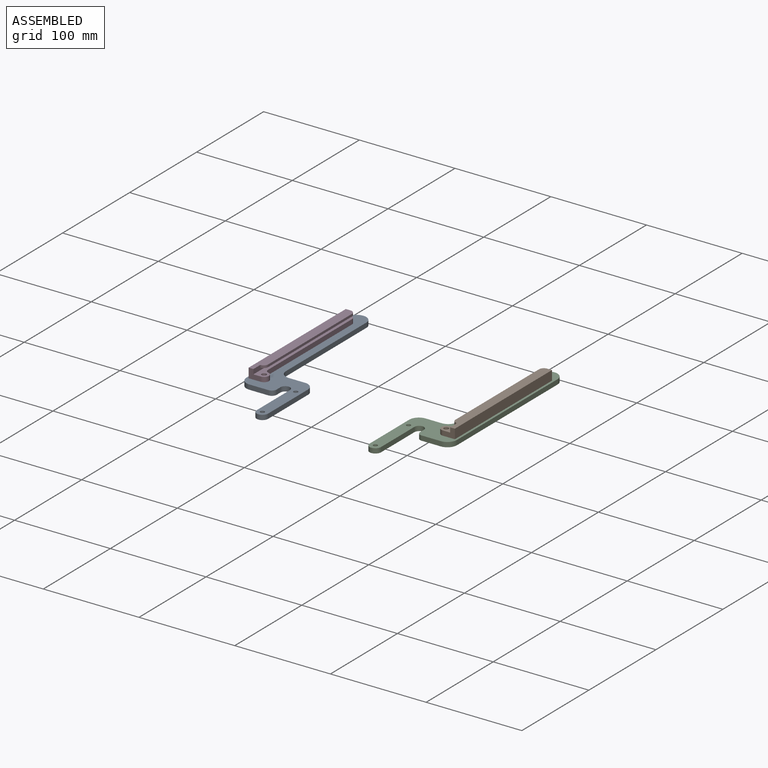
[diagram: assembled view]
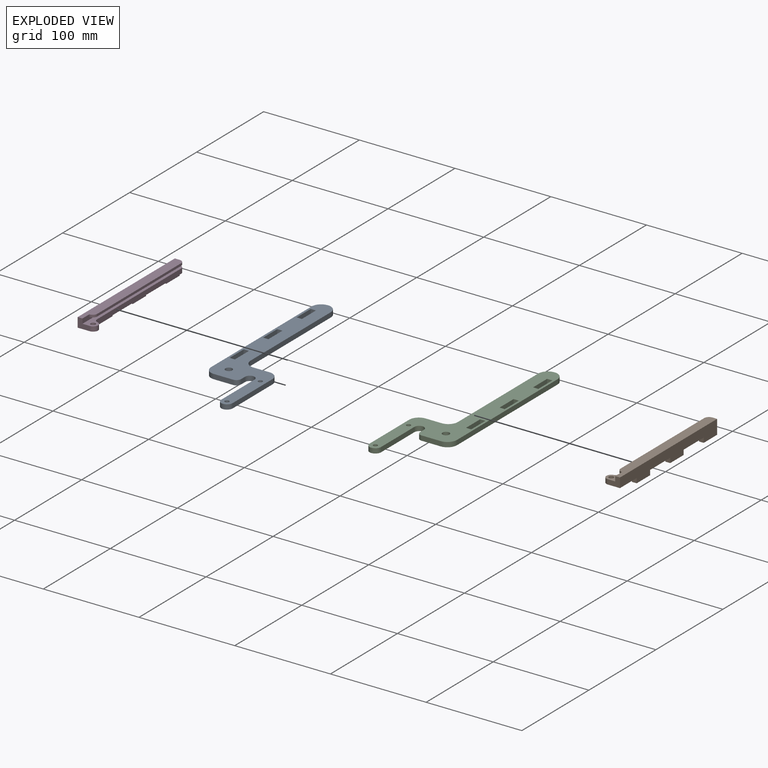
[diagram: exploded view]
GUIDED TOUR — MATED ASSEMBLY (Onshape document 1dc58d73f94488527673a821, AutoMate assembly 1dc58d73f94488527673a821_1d1bc981f87a5ec84d9c5de7_67ff52ae4060aa05bb21cb07_default)

This assembly has 4 components, labeled P0..P3 below (a component is one placed occurrence of a part; the same part can appear more than once), held together by 2 mates. A mate is a constraint between two components; its type names the relative motion it leaves free:
  PLANAR — leaves sliding in the plane through the listed point (normal = the listed direction) and rotation about that normal free.
Axis/direction vectors are unit vectors and 'through' points are millimeter coordinates, both in the assembly's world frame.

MATES
  1. PLANAR "Planar 4": P3 <-> P0, direction (-1.000, 0.000, 0.000) through (-289.00, 18.47, 2.50) mm
  2. PLANAR "Planar 3": P1 <-> P2, direction (1.000, 0.000, 0.000) through (-73.50, 18.47, 2.50) mm

ASSEMBLY ORDER
  1. P2 — the base component [order verified]
  2. P1 [order verified]
  3. P0 [order verified]
  4. P3 [order verified]
(P1 verified with a relaxed clearance tolerance: the source model stores slight part interference there.)
Order-tag legend:
  [order verified] — this step's position reverses a verified removal order: the component was checked to insert without passing through the ones already placed.

Of the 4 components, 2 carry the full construction recipe — the FeatureScript program that regenerates the part's solid from scratch; the rest are supplied as boundary geometry only.
Each toured component is shown spotlighted twice — in the assembled view, then in the exploded view, where a leader line traces a displaced component back to its assembled socket (saturated green if recipe-attached, orange if geometry-only; every other component desaturated gray) — followed by its recipe or geometry summary and the mates that hold it.
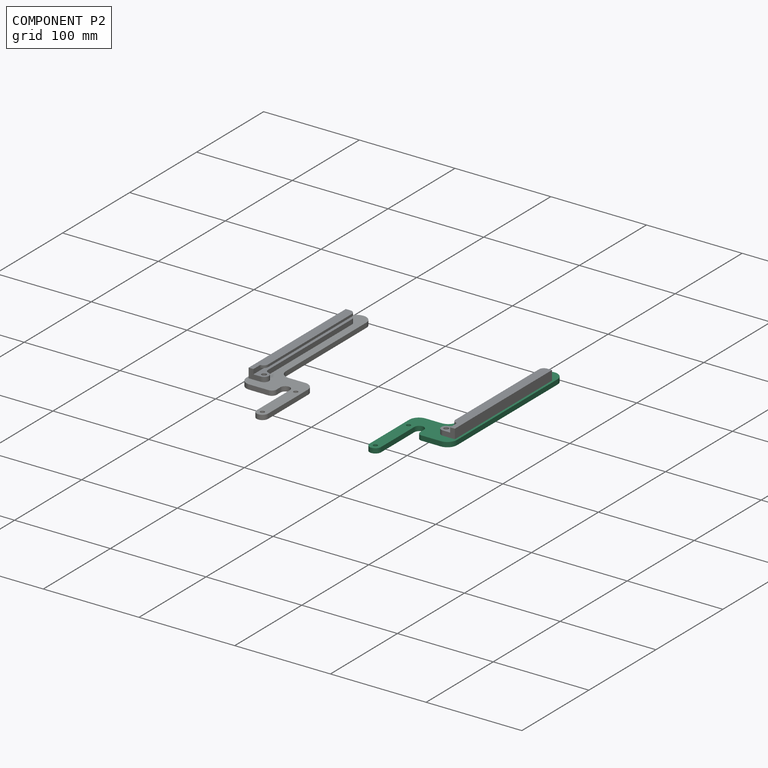
[diagram: component P2 — assembled]
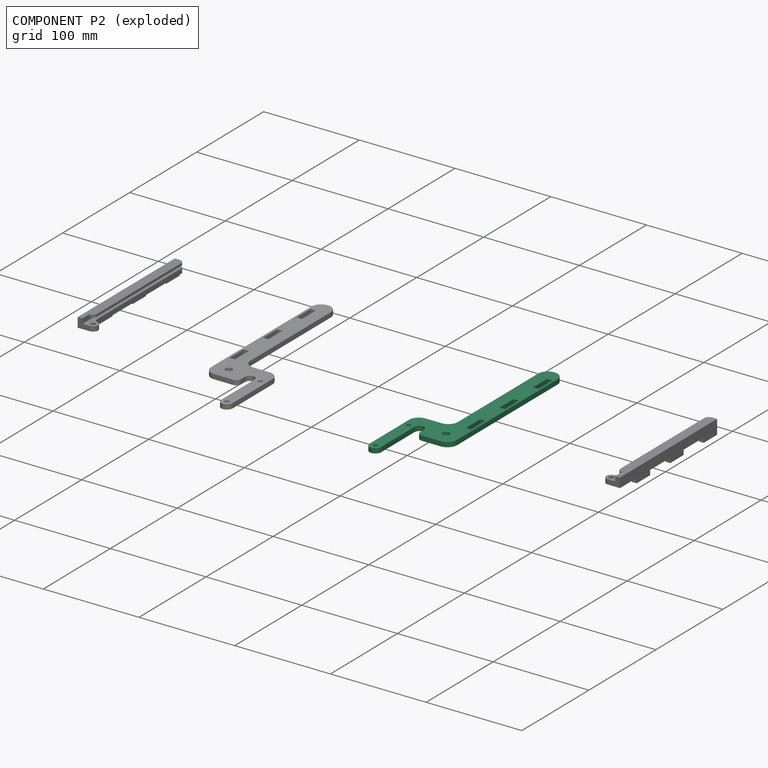
[diagram: component P2 — exploded]
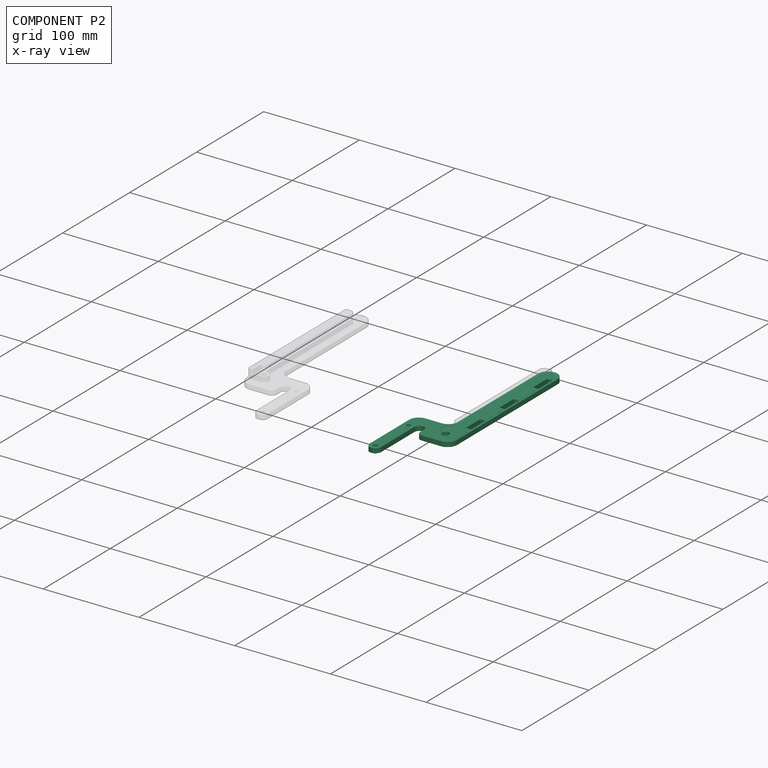
[diagram: component P2 — x-ray view]
COMPONENT P2 — same part as P0 (CADFS 00196393); its construction recipe is shown at P0.
Held by: PLANAR mate "Planar 3" to P1.
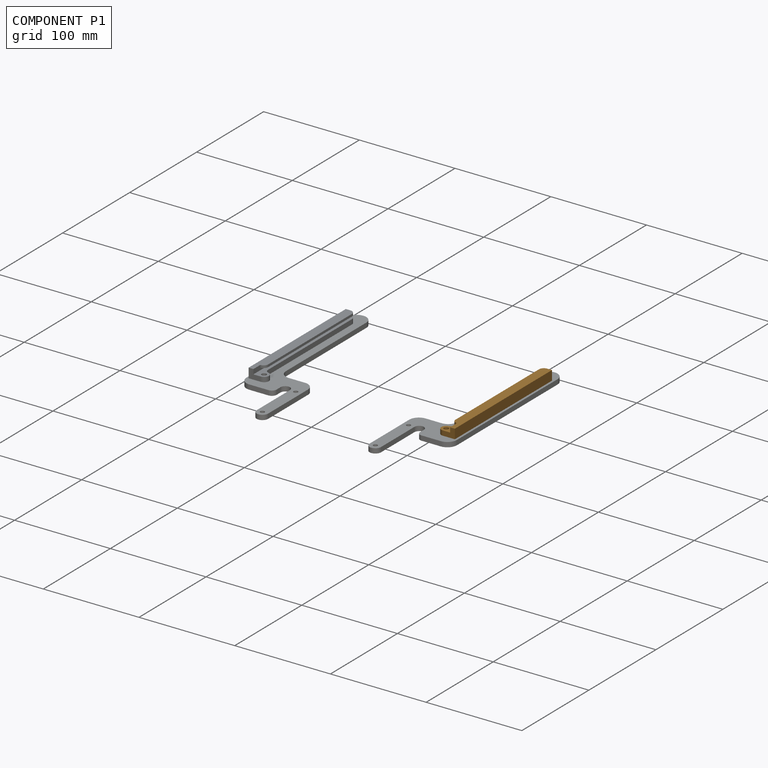
[diagram: component P1 — assembled]
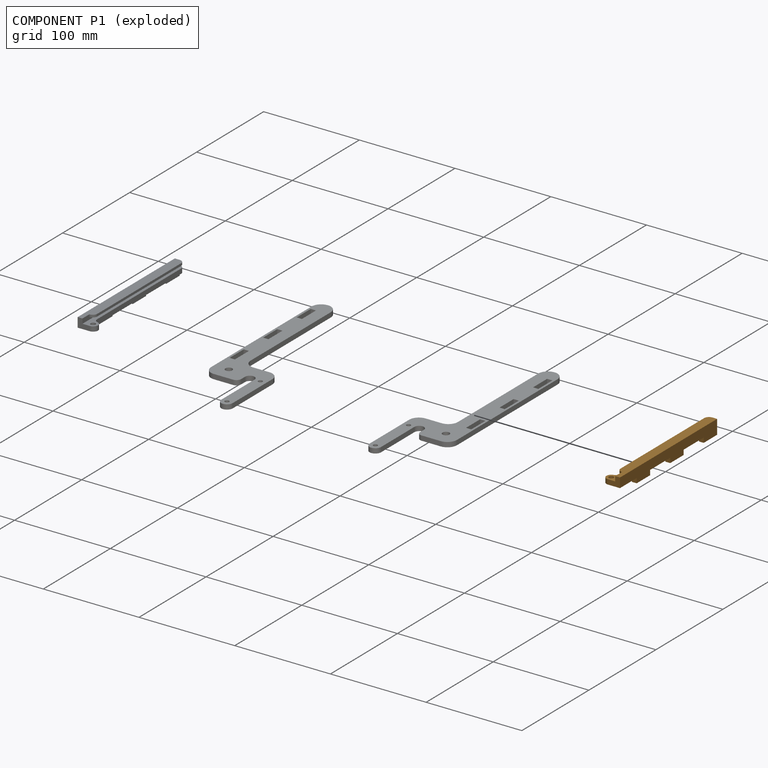
[diagram: component P1 — exploded]
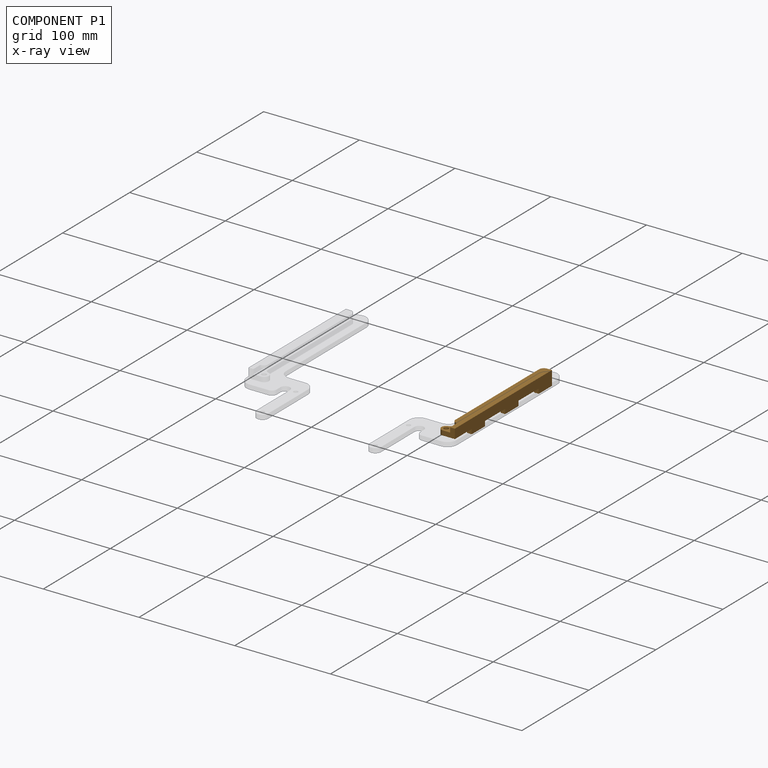
[diagram: component P1 — x-ray view]
COMPONENT P1 — geometry summary (no construction recipe available for this part):
  bounding box: 145.0 x 17.7 x 15.0 mm
  B-rep topology: 1 solid, 27 faces, 144 edges
  volume: 14264 mm^3 (37% of its bounding box)
Held by: PLANAR mate "Planar 3" to P2.
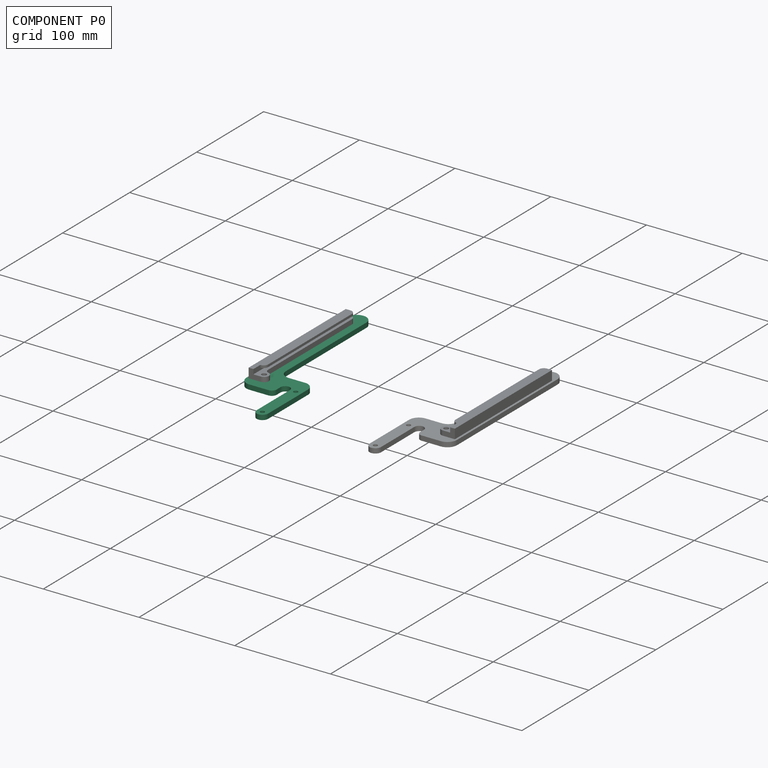
[diagram: component P0 — assembled]
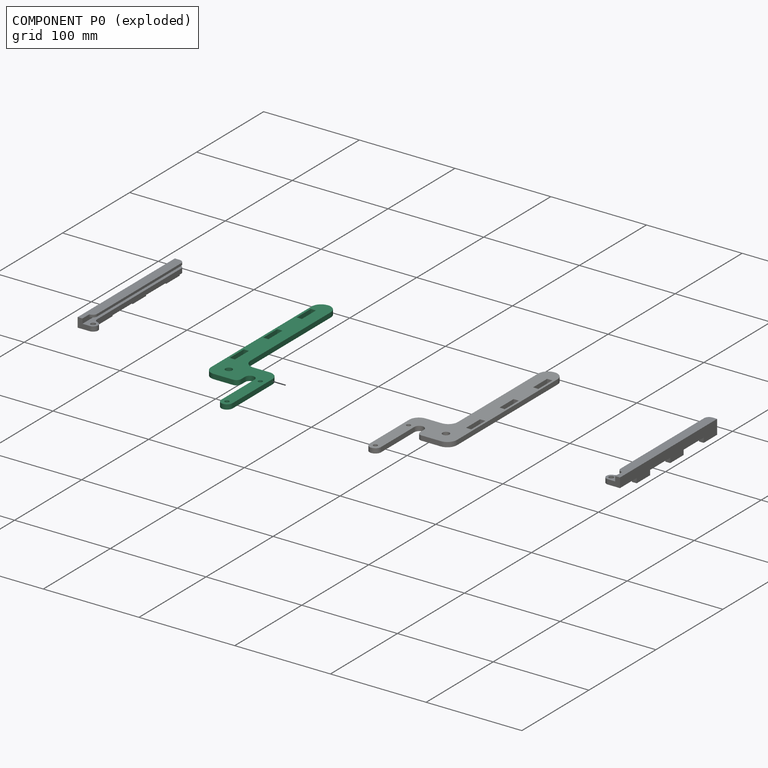
[diagram: component P0 — exploded]
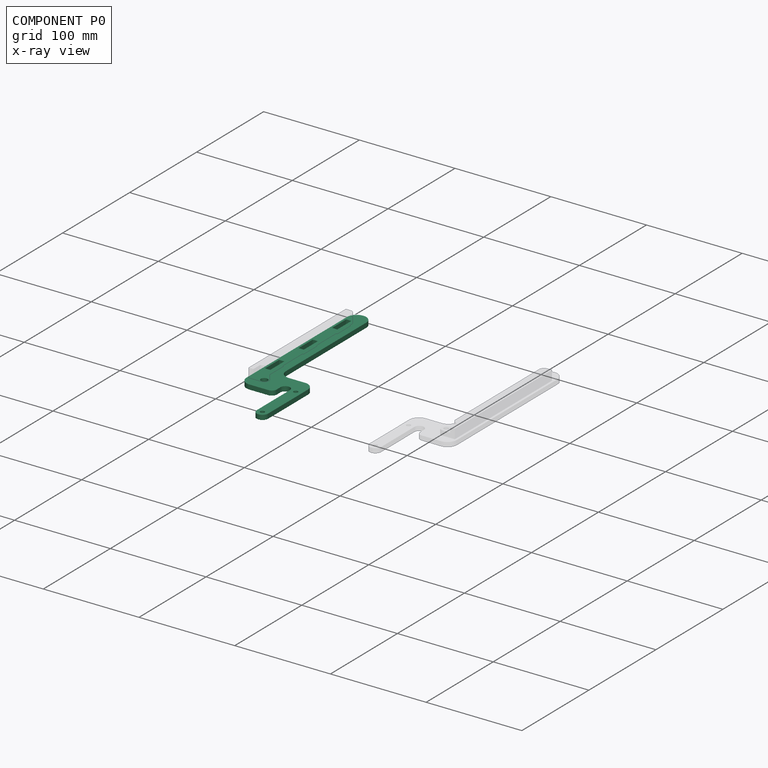
[diagram: component P0 — x-ray view]
COMPONENT P0 — recipe-attached (CADFS 00196393, mesh-verified: the recipe's output STEP matches this component's geometry to below the mesh-comparison resolution (tessellation chordal tolerance ~0.334 mm)).
Held by: PLANAR mate "Planar 4" to P3.
Construction recipe (FeatureScript — the CAD program that rebuilds this solid; sketch coordinates are in the units given by the * unit suffixes, e.g. mm):

FeatureScript 1511;
import(path : "onshape/std/geometry.fs", version : "1511.0");
import(path : "onshape/std/common.fs", version : "1511.0");
const mm = millimeter;
const VERTEX = EntityType.VERTEX;
const EDGE = EntityType.EDGE;
const FACE = EntityType.FACE;
const BODY = EntityType.BODY;
function v(x, y){return vector(x, y);}
function OD(order){return orderDisambiguation(order);}
function OSD(set){return originalSetDisambiguation(set);}
function TD(topology){return topologyDisambiguation(topology);}
function TDD(query){return trueDependencyDisambiguation(query);}
function sQuery(a, b, c) {return sketchEntityQuery(a, b, c);}

annotation { "Feature Type Name" : "Feature", "Feature Type Description" : "" }
export const myFeature = defineFeature(function(context is Context, id is Id, definition is map)
    precondition{}
    {
        {
            var Q0;
            Q0=qCreatedBy(makeId("Top.planeOp"),FACE);
            var sketch = newSketch(context, id + "F0", { "sketchPlane" : qUnion([Q0])});
            skLineSegment(sketch, "E0.bottom", {"start": v(0.08, 85) * mm, "end": v(-0.08, 85) * mm});
            skLineSegment(sketch, "E0.top", {"start": v(10.08, -85) * mm, "end": v(-0.08, -85) * mm});
            skLineSegment(sketch, "E0.left", {"start": v(10.08, 75) * mm, "end": v(10.08, -44.84) * mm});
            skLineSegment(sketch, "E0.right", {"start": v(-10.08, 75) * mm, "end": v(-10.08, -75) * mm});
            skPoint(sketch, "E0.middle", {"position": v(0, 0) * mm});
            skLineSegment(sketch, "E1.bottom", {"start": v(-2.33, 49.5) * mm, "end": v(-7.83, 49.5) * mm});
            skLineSegment(sketch, "E1.top", {"start": v(-2.33, 70.5) * mm, "end": v(-7.83, 70.5) * mm});
            skLineSegment(sketch, "E1.left", {"start": v(-2.33, 49.5) * mm, "end": v(-2.33, 70.5) * mm});
            skLineSegment(sketch, "E1.right", {"start": v(-7.83, 49.5) * mm, "end": v(-7.83, 70.5) * mm});
            skPoint(sketch, "E1.middle", {"position": v(-5.08, 60) * mm});
            skLineSegment(sketch, "E2.bottom", {"start": v(-2.33, -0.5) * mm, "end": v(-7.83, -0.5) * mm});
            skLineSegment(sketch, "E2.top", {"start": v(-2.33, 20.5) * mm, "end": v(-7.83, 20.5) * mm});
            skLineSegment(sketch, "E2.left", {"start": v(-2.33, -0.5) * mm, "end": v(-2.33, 20.5) * mm});
            skLineSegment(sketch, "E2.right", {"start": v(-7.83, -0.5) * mm, "end": v(-7.83, 20.5) * mm});
            skPoint(sketch, "E2.middle", {"position": v(-5.08, 10) * mm});
            skLineSegment(sketch, "E3.bottom", {"start": v(-2.33, -50.5) * mm, "end": v(-7.83, -50.5) * mm});
            skLineSegment(sketch, "E3.top", {"start": v(-2.33, -29.5) * mm, "end": v(-7.83, -29.5) * mm});
            skLineSegment(sketch, "E3.left", {"start": v(-2.33, -50.5) * mm, "end": v(-2.33, -29.5) * mm});
            skLineSegment(sketch, "E3.right", {"start": v(-7.83, -50.5) * mm, "end": v(-7.83, -29.5) * mm});
            skPoint(sketch, "E3.middle", {"position": v(-5.08, -40) * mm});
            skCircle(sketch, "E4", {"center": v(5, -69.92) * mm, "radius": 3.6 * mm});
            skCircle(sketch, "E5", {"center": v(40.92, -74.3) * mm, "radius": 2.2 * mm});
            skLineSegment(sketch, "E6.bottom", {"start": v(10.08, -85) * mm, "end": v(19.92, -85) * mm});
            skLineSegment(sketch, "E6.top", {"start": v(20.08, -54.84) * mm, "end": v(34.92, -54.84) * mm});
            skLineSegment(sketch, "E7.bottom", {"start": v(34.92, -54.84) * mm, "end": v(36.92, -54.84) * mm});
            skLineSegment(sketch, "E7.top", {"start": v(40.92, -130) * mm, "end": v(40.92, -130) * mm});
            skLineSegment(sketch, "E7.left", {"start": v(34.92, -74.3) * mm, "end": v(34.92, -124) * mm});
            skLineSegment(sketch, "E7.right", {"start": v(46.92, -64.84) * mm, "end": v(46.92, -124) * mm});
            skPoint(sketch, "E8.visualSharp", {"position": v(-10.08, -85) * mm});
            skArc(sketch, "E8.filletArc", {"start": v(-10.08, -75) * mm, "mid": v(-7.15, -82.07) * mm, "end": v(-0.08, -85) * mm});
            skPoint(sketch, "E9.visualSharp", {"position": v(10.08, -54.84) * mm});
            skArc(sketch, "E9.filletArc", {"start": v(10.08, -44.84) * mm, "mid": v(13, -51.91) * mm, "end": v(20.08, -54.84) * mm});
            skPoint(sketch, "E10.visualSharp", {"position": v(46.92, -54.84) * mm});
            skArc(sketch, "E10.filletArc", {"start": v(46.92, -64.84) * mm, "mid": v(44, -57.77) * mm, "end": v(36.92, -54.84) * mm});
            skPoint(sketch, "E11.visualSharp", {"position": v(-10.08, 85) * mm});
            skArc(sketch, "E11.filletArc", {"start": v(-0.08, 85) * mm, "mid": v(-7.15, 82.07) * mm, "end": v(-10.08, 75) * mm});
            skPoint(sketch, "E12.visualSharp", {"position": v(10.08, 85) * mm});
            skArc(sketch, "E12.filletArc", {"start": v(10.08, 75) * mm, "mid": v(7.15, 82.07) * mm, "end": v(0.08, 85) * mm});
            skCircle(sketch, "E13", {"center": v(40.92, -124) * mm, "radius": 2.2 * mm});
            skPoint(sketch, "E14.visualSharp", {"position": v(34.92, -130) * mm});
            skArc(sketch, "E14.filletArc", {"start": v(34.92, -124) * mm, "mid": v(36.68, -128.24) * mm, "end": v(40.92, -130) * mm});
            skPoint(sketch, "E15.visualSharp", {"position": v(46.92, -130) * mm});
            skArc(sketch, "E15.filletArc", {"start": v(40.92, -130) * mm, "mid": v(45.16, -128.24) * mm, "end": v(46.92, -124) * mm});
            skArc(sketch, "E16", {"start": v(34.92, -74.3) * mm, "mid": v(29.9, -69.3) * mm, "end": v(24.92, -74.34) * mm});
            skLineSegment(sketch, "E17", {"start": v(24.92, -74.26) * mm, "end": v(24.92, -80) * mm});
            skPoint(sketch, "E18.visualSharp", {"position": v(24.92, -85) * mm});
            skArc(sketch, "E18.filletArc", {"start": v(19.92, -85) * mm, "mid": v(23.46, -83.54) * mm, "end": v(24.92, -80) * mm});
            skSolve(sketch);
        }
        {
            var Q0;
            Q0=makeQuery(id+"F0.imprint","IMPRINT",FACE,{"disambiguationData":[TD([[makeQuery(id+"F0.imprint","IMPRINT",EDGE,{"derivedFrom":sQuery(id+"F0.wireOp",EDGE,"E0.bottom")}),1.0]])]});
            extrude(context, id + "F1", {"entities" : qUnion([Q0]), "depth" : 5 * mm});
        }
    });
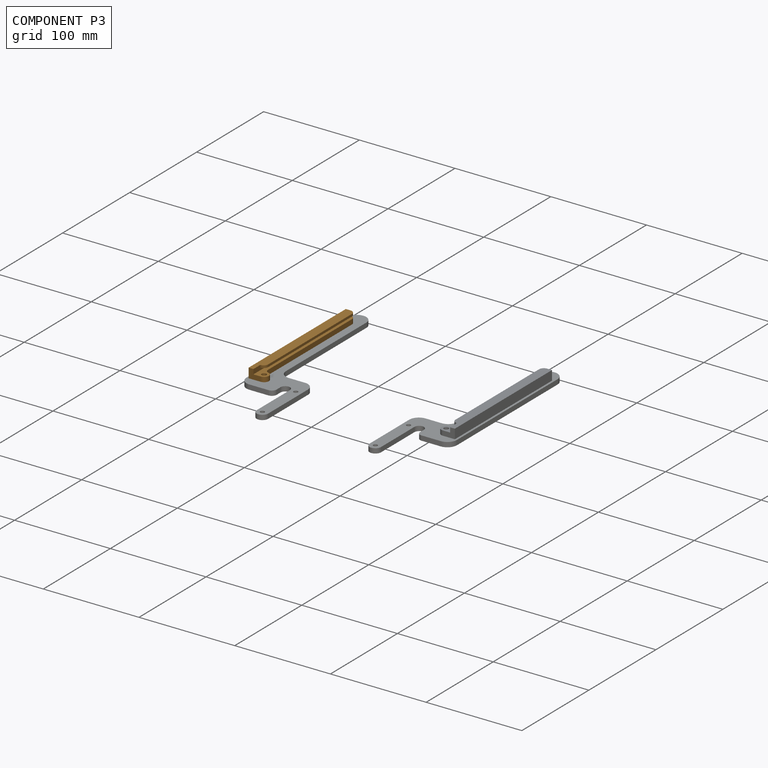
[diagram: component P3 — assembled]
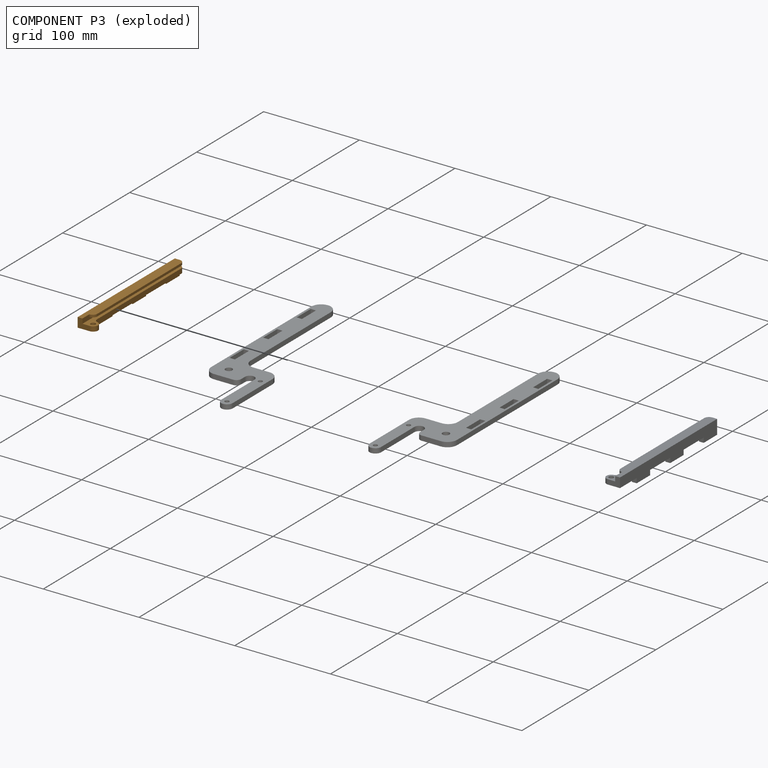
[diagram: component P3 — exploded]
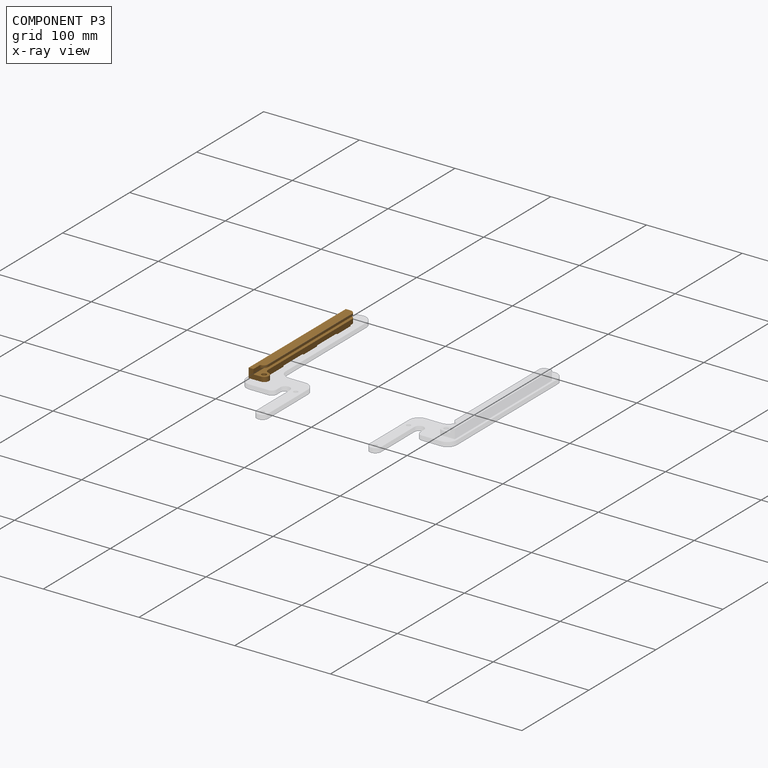
[diagram: component P3 — x-ray view]
COMPONENT P3 — geometry summary (no construction recipe available for this part):
  bounding box: 145.0 x 17.7 x 15.0 mm
  B-rep topology: 1 solid, 27 faces, 144 edges
  volume: 14264 mm^3 (37% of its bounding box)
Held by: PLANAR mate "Planar 4" to P0.
PROVENANCE & LICENSES
Assembly (occurrences, transforms, mates, per-part STEP geometry): AutoMate dataset, Zenodo record 7776208, CC0.
Construction recipes: CADFS (HuggingFace VladPyatov/CADFS, CC-BY-4.0, layered over the ABC dataset), FeatureScript reconstruction programs keyed by ABC model id.
Join: ABC meta listings map ABC model id -> Onshape documentId; within a shared document, parts are matched by geometric signature (bounding-box dims + volume at 0.1% relative tolerance, exact B-rep face/solid counts).
Verification: 2 of this assembly's 4 components carry a recipe attachment, and every attachment is mesh-verified: the CADFS STEP and the AutoMate member STEP were compared as meshes in their shared local frame (symmetric sampled-point-to-mesh distance); worst across the 2 attachments: below the mesh-comparison resolution (tessellation chordal tolerance ~0.334 mm) on a 222 mm part.
Renders: orthographic iso camera (az 35 / el 25); the floor grid conveys scale (grid pitch printed in each image; no ruler). In the exploded view each component is displaced by its stored offset vector: the offsets alone carry the explosion direction (mate normal/axis signs are not orientation cues and do not encode it), and separation distances are assigned per mate-chain, not proportionally to assembly-order depth.
